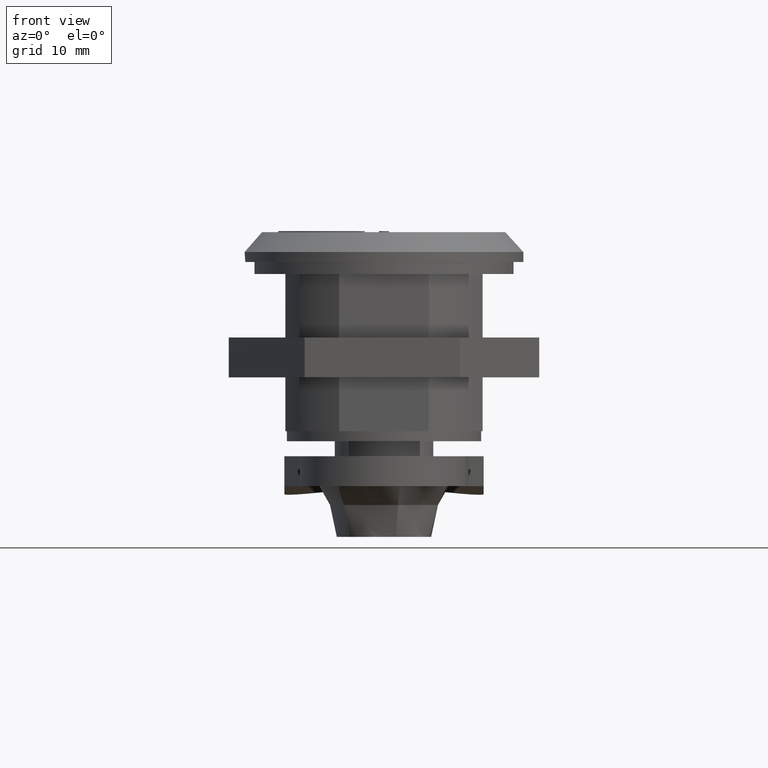
[diagram: clean part render]
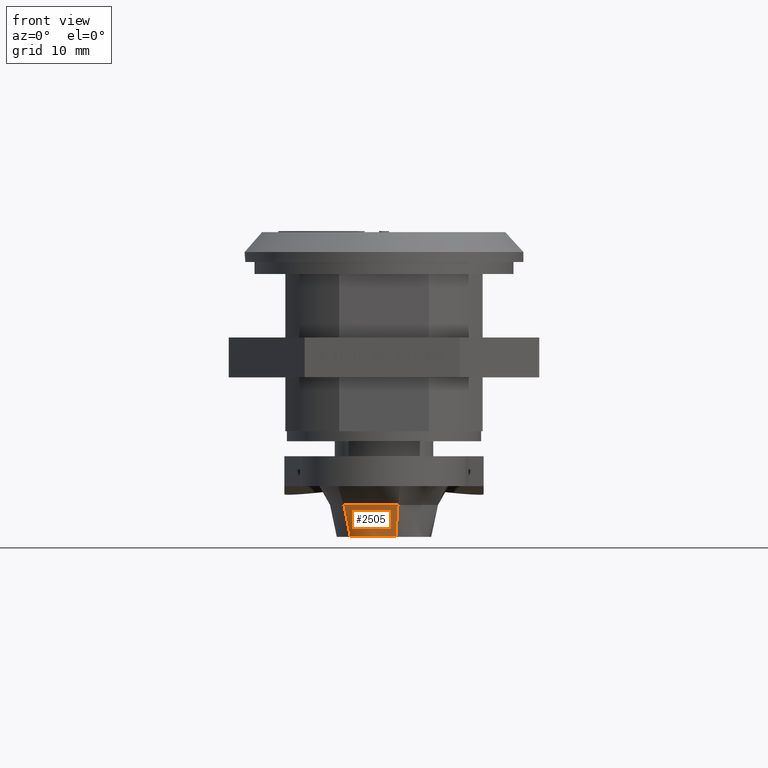
[diagram: same view with one face highlighted and labeled with its STEP entity id]
A machine part, front view. The second image highlights one B-rep face of the part: STEP entity #2505.
In plain terms, the highlighted face is a freeform B-spline surface patch.
Its self-contained STEP definition (entity closure, byte-faithful):
#54=B_SPLINE_SURFACE_WITH_KNOTS('',3,3,((#4435,#4436,#4437,#4438),(#4439,
#4440,#4441,#4442),(#4443,#4444,#4445,#4446),(#4447,#4448,#4449,#4450),
(#4451,#4452,#4453,#4454)),.UNSPECIFIED.,.F.,.F.,.F.,(4,1,4),(4,4),(0.,
0.571428571428571,1.),(0.,1.),.UNSPECIFIED.);
#338=LINE('',#4434,#555);
#339=LINE('',#4456,#556);
#340=LINE('',#4457,#557);
#555=VECTOR('',#3436,3.31747268263056);
#556=VECTOR('',#3437,5.625);
#557=VECTOR('',#3438,3.31747268263056);
#746=FACE_OUTER_BOUND('',#932,.T.);
#932=EDGE_LOOP('',(#2228,#2229,#2230,#2231));
#1041=CIRCLE('',#2752,4.75);
#1264=VERTEX_POINT('',#4357);
#1265=VERTEX_POINT('',#4359);
#1270=VERTEX_POINT('',#4432);
#1271=VERTEX_POINT('',#4455);
#1583=EDGE_CURVE('',#1264,#1265,#1041,.T.);
#1592=EDGE_CURVE('',#1270,#1264,#338,.T.);
#1593=EDGE_CURVE('',#1271,#1270,#339,.T.);
#1594=EDGE_CURVE('',#1271,#1265,#340,.T.);
#2228=ORIENTED_EDGE('',*,*,#1593,.F.);
#2229=ORIENTED_EDGE('',*,*,#1594,.T.);
#2230=ORIENTED_EDGE('',*,*,#1583,.F.);
#2231=ORIENTED_EDGE('',*,*,#1592,.F.);
#2505=ADVANCED_FACE('',(#746),#54,.T.);
#2752=AXIS2_PLACEMENT_3D('',#4360,#3424,#3425);
#3424=DIRECTION('center_axis',(0.,0.,1.));
#3425=DIRECTION('ref_axis',(-1.,0.,0.));
#3436=DIRECTION('',(-0.263754997767209,0.,0.964589706120078));
#3437=DIRECTION('',(0.5,-0.866025403784439,0.));
#3438=DIRECTION('',(-0.131877498883605,-0.22841852844151,0.964589706120079));
#4357=CARTESIAN_POINT('',(7.82666722889097,5.57644993162497,5.1));
#4359=CARTESIAN_POINT('',(5.45166722889098,9.69007059960105,5.1));
#4360=CARTESIAN_POINT('Origin',(3.07666722889097,5.57644993162497,5.1));
#4432=CARTESIAN_POINT('',(8.70166722889098,5.57644993162497,1.9));
#4434=CARTESIAN_POINT('',(8.70166722889098,5.57644993162497,1.9));
#4435=CARTESIAN_POINT('Ctrl Pts',(8.70166722889098,5.57644993162497,1.9));
#4436=CARTESIAN_POINT('Ctrl Pts',(8.41000056222431,5.57644993162497,2.96666666666667));
#4437=CARTESIAN_POINT('Ctrl Pts',(8.11833389555764,5.57644993162497,4.03333333333333));
#4438=CARTESIAN_POINT('Ctrl Pts',(7.82666722889097,5.57644993162497,5.1));
#4439=CARTESIAN_POINT('Ctrl Pts',(8.16595294317669,6.50433429282258,1.9));
#4440=CARTESIAN_POINT('Ctrl Pts',(8.05389546814302,6.51113082421173,2.96666666666667));
#4441=CARTESIAN_POINT('Ctrl Pts',(7.93872470392465,6.51711785131845,4.03333333333333));
#4442=CARTESIAN_POINT('Ctrl Pts',(7.82666722889097,6.5239143827076,5.1));
#4443=CARTESIAN_POINT('Ctrl Pts',(7.22845294317669,8.12813192491841,1.9));
#4444=CARTESIAN_POINT('Ctrl Pts',(7.25695872350088,8.14479045767859,2.96666666666667));
#4445=CARTESIAN_POINT('Ctrl Pts',(7.28658272234684,8.16190436939596,4.03333333333333));
#4446=CARTESIAN_POINT('Ctrl Pts',(7.31508850267103,8.17856290215615,5.1));
#4447=CARTESIAN_POINT('Ctrl Pts',(6.29095294317669,9.75192955701423,1.9));
#4448=CARTESIAN_POINT('Ctrl Pts',(6.21631192218318,9.61309101511137,2.96666666666667));
#4449=CARTESIAN_POINT('Ctrl Pts',(6.14170446274967,9.47360997234792,4.03333333333333));
#4450=CARTESIAN_POINT('Ctrl Pts',(6.06706344175615,9.33477143044506,5.1));
#4451=CARTESIAN_POINT('Ctrl Pts',(5.88916722889098,10.4478428279124,1.9));
#4452=CARTESIAN_POINT('Ctrl Pts',(5.74333389555764,10.195252085142,2.96666666666667));
#4453=CARTESIAN_POINT('Ctrl Pts',(5.59750056222431,9.94266134237151,4.03333333333333));
#4454=CARTESIAN_POINT('Ctrl Pts',(5.45166722889097,9.69007059960105,5.1));
#4455=CARTESIAN_POINT('',(5.88916722889098,10.4478428279124,1.9));
#4456=CARTESIAN_POINT('',(5.88916722889098,10.4478428279124,1.9));
#4457=CARTESIAN_POINT('',(5.88916722889098,10.4478428279124,1.9));